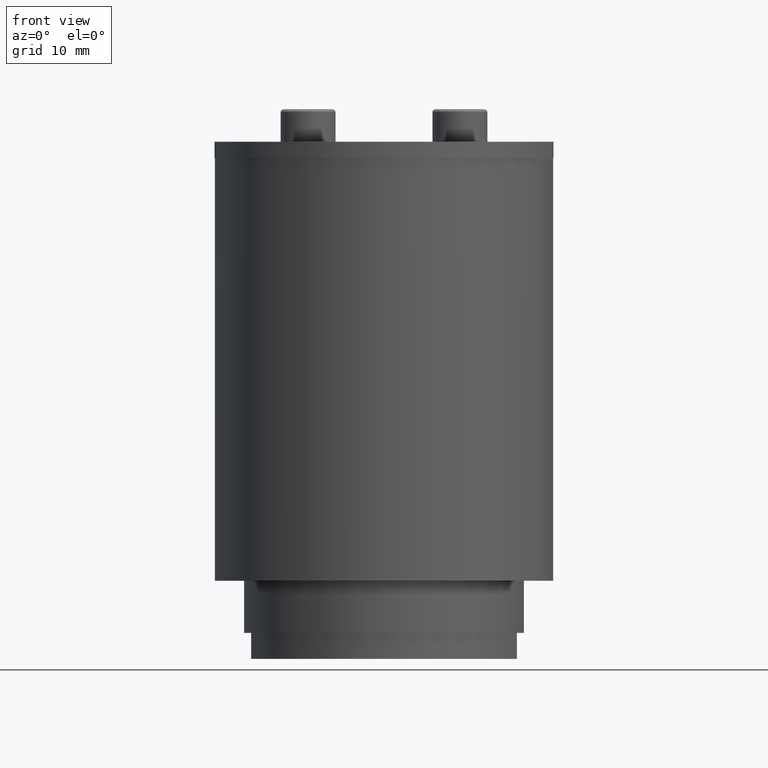
[diagram: clean part render]
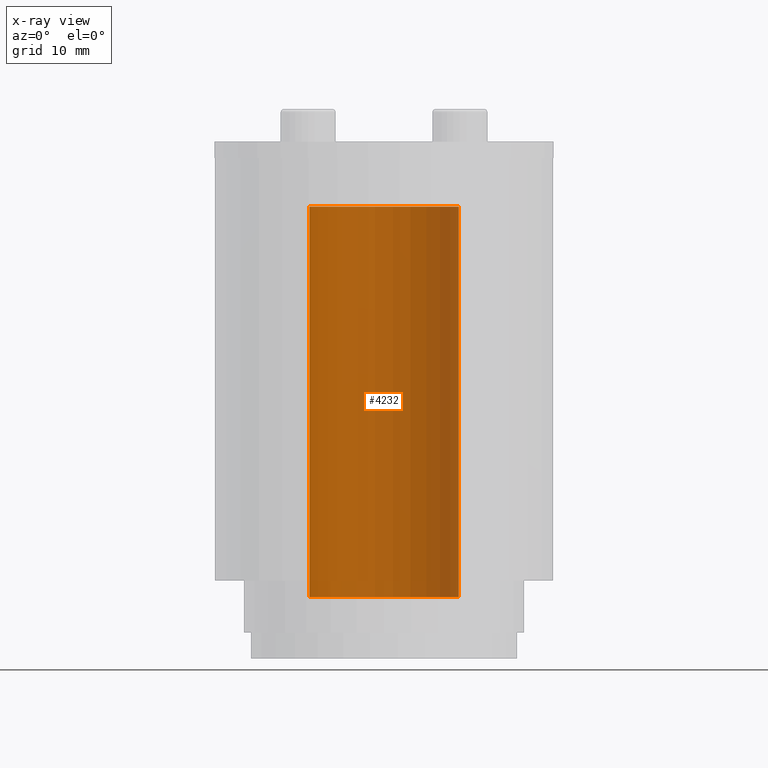
[diagram: x-ray — body ghosted, one internal face saturated and labeled with its STEP entity id]
A machine part, front view, then the same camera in x-ray: the body is ghosted and one INTERNAL B-rep face — a face not visible from any outside direction — is saturated and labeled: STEP entity #4232.
In plain terms, the highlighted cylindrical surface (partial cylindrical patch) has radius 11.5 mm, axis along (0, 0, 1).
Its self-contained STEP definition (entity closure, byte-faithful):
#4166=CARTESIAN_POINT('',(-30.000000000000004,-1.145169E-015,11.499999999999996));
#4167=VERTEX_POINT('',#4166);
#4174=CARTESIAN_POINT('',(-30.0,2.553513E-015,-11.499999999999996));
#4175=VERTEX_POINT('',#4174);
#4176=CARTESIAN_POINT('',(-30.000000000000004,0.0,0.0));
#4177=DIRECTION('',(1.0,0.0,0.0));
#4178=DIRECTION('',(0.0,0.0,-1.0));
#4179=AXIS2_PLACEMENT_3D('',#4176,#4177,#4178);
#4180=CIRCLE('',#4179,11.499999999999996);
#4181=EDGE_CURVE('',#4175,#4167,#4180,.T.);
#4201=CARTESIAN_POINT('',(0.0,0.0,0.0));
#4202=DIRECTION('',(1.0,0.0,0.0));
#4203=DIRECTION('',(0.0,0.0,-1.0));
#4204=AXIS2_PLACEMENT_3D('',#4201,#4202,#4203);
#4205=CYLINDRICAL_SURFACE('',#4204,11.499999999999996);
#4206=CARTESIAN_POINT('',(30.0,-1.145169E-015,11.499999999999996));
#4207=VERTEX_POINT('',#4206);
#4208=CARTESIAN_POINT('',(-30.0,-1.145169E-015,11.499999999999996));
#4209=DIRECTION('',(1.0,0.0,0.0));
#4210=VECTOR('',#4209,60.0);
#4211=LINE('',#4208,#4210);
#4212=EDGE_CURVE('',#4167,#4207,#4211,.T.);
#4213=ORIENTED_EDGE('',*,*,#4212,.T.);
#4214=CARTESIAN_POINT('',(30.0,2.553513E-015,-11.499999999999996));
#4215=VERTEX_POINT('',#4214);
#4216=CARTESIAN_POINT('',(30.0,0.0,0.0));
#4217=DIRECTION('',(1.0,0.0,0.0));
#4218=DIRECTION('',(0.0,0.0,-1.0));
#4219=AXIS2_PLACEMENT_3D('',#4216,#4217,#4218);
#4220=CIRCLE('',#4219,11.499999999999996);
#4221=EDGE_CURVE('',#4215,#4207,#4220,.T.);
#4222=ORIENTED_EDGE('',*,*,#4221,.F.);
#4223=CARTESIAN_POINT('',(-30.0,2.553513E-015,-11.499999999999996));
#4224=DIRECTION('',(1.0,0.0,0.0));
#4225=VECTOR('',#4224,60.0);
#4226=LINE('',#4223,#4225);
#4227=EDGE_CURVE('',#4175,#4215,#4226,.T.);
#4228=ORIENTED_EDGE('',*,*,#4227,.F.);
#4229=ORIENTED_EDGE('',*,*,#4181,.T.);
#4230=EDGE_LOOP('',(#4213,#4222,#4228,#4229));
#4231=FACE_OUTER_BOUND('',#4230,.T.);
#4232=ADVANCED_FACE('',(#4231),#4205,.T.);